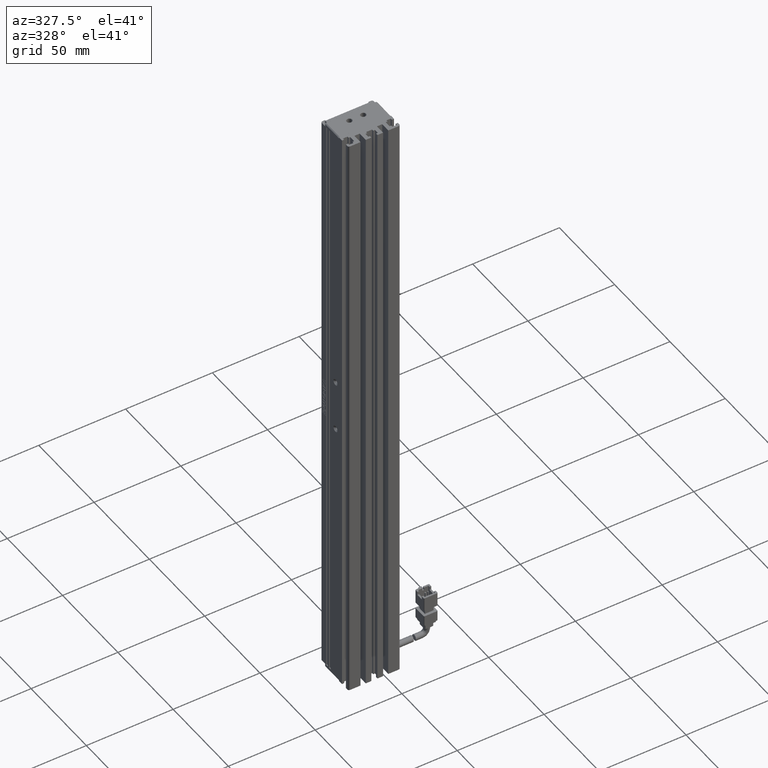
[diagram: clean part render]
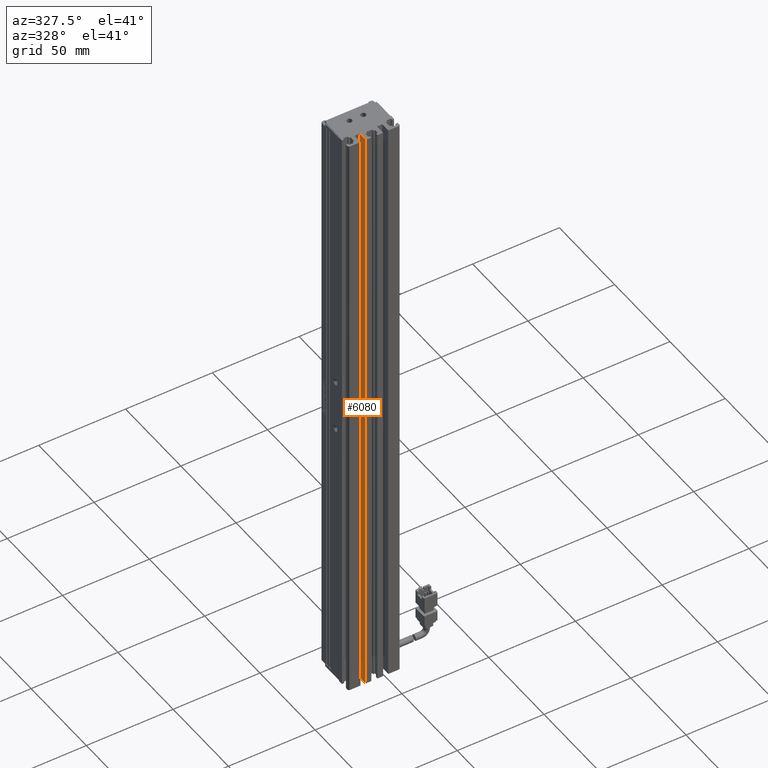
[diagram: same view with one face highlighted and labeled with its STEP entity id]
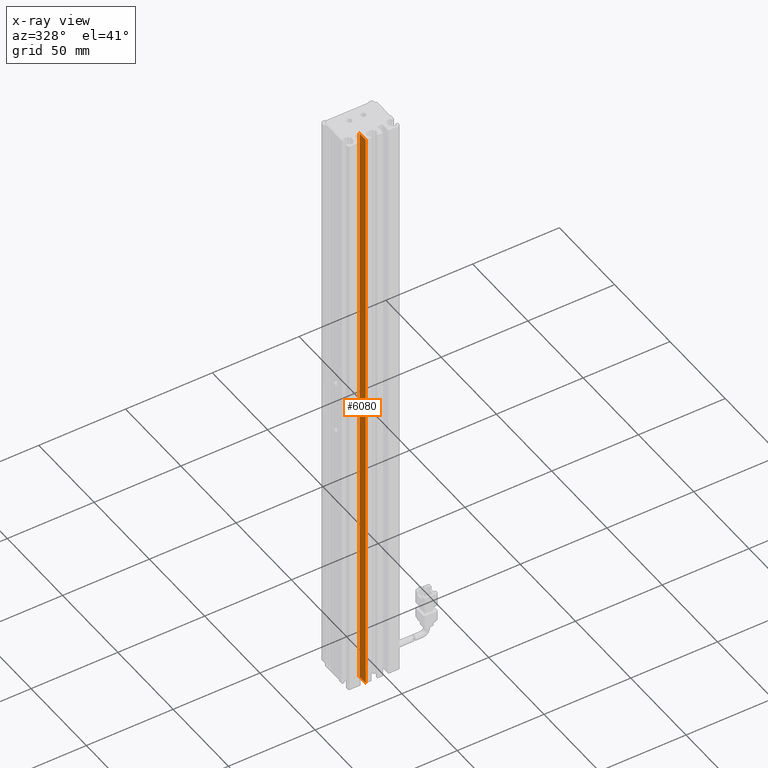
[diagram: x-ray of the same camera — body ghosted, the highlighted face saturated]
A machine part, auxiliary view. The second image highlights one B-rep face of the part: STEP entity #6080.
The next image is the same camera in x-ray: the body ghosted, the highlighted face saturated — about 0% of this face is hidden behind the body in this view.
In plain terms, the highlighted planar face has unit normal (-1, 0, 0).
Its self-contained STEP definition (entity closure, byte-faithful):
#1739 = VECTOR ( 'NONE', #32059, 1000.000000000000000 ) ;
#1831 = CARTESIAN_POINT ( 'NONE',  ( 35.92537974683543200, 10.69594479660386800, -290.0000000000000600 ) ) ;
#2064 = CARTESIAN_POINT ( 'NONE',  ( 35.92537974683543200, 7.083797468354437600, 60.00000000000001400 ) ) ;
#2405 = CARTESIAN_POINT ( 'NONE',  ( 35.92537974683543200, 16.19594479660386500, 60.00000000000001400 ) ) ;
#2932 = ORIENTED_EDGE ( 'NONE', *, *, #12432, .T. ) ;
#3138 = LINE ( 'NONE', #20444, #30876 ) ;
#3637 = EDGE_CURVE ( 'NONE', #8495, #66335, #30875, .T. ) ;
#5198 = VERTEX_POINT ( 'NONE', #1831 ) ;
#6080 = ADVANCED_FACE ( 'NONE', ( #67431 ), #48747, .T. ) ;
#6092 = CARTESIAN_POINT ( 'NONE',  ( 35.92537974683543200, 7.083797468354437600, 60.00000000000001400 ) ) ;
#7324 = DIRECTION ( 'NONE',  ( 0.0000000000000000000, 0.0000000000000000000, 1.000000000000000000 ) ) ;
#7394 = ORIENTED_EDGE ( 'NONE', *, *, #3637, .T. ) ;
#7728 = CARTESIAN_POINT ( 'NONE',  ( 35.92537974683543200, 7.083797468354437600, -290.0000000000000600 ) ) ;
#8305 = AXIS2_PLACEMENT_3D ( 'NONE', #2064, #38490, #7324 ) ;
#8495 = VERTEX_POINT ( 'NONE', #38584 ) ;
#10364 = CARTESIAN_POINT ( 'NONE',  ( 35.92537974683543200, 16.19594479660386500, -290.0000000000000600 ) ) ;
#12432 = EDGE_CURVE ( 'NONE', #66335, #5198, #51701, .T. ) ;
#15488 = CARTESIAN_POINT ( 'NONE',  ( 35.92537974683543200, 10.69594479660386800, 60.00000000000001400 ) ) ;
#20444 = CARTESIAN_POINT ( 'NONE',  ( 35.92537974683543200, 10.69594479660386800, 60.00000000000001400 ) ) ;
#26005 = EDGE_CURVE ( 'NONE', #32771, #5198, #3138, .T. ) ;
#29243 = VECTOR ( 'NONE', #38622, 1000.000000000000000 ) ;
#30875 = LINE ( 'NONE', #2405, #29243 ) ;
#30876 = VECTOR ( 'NONE', #56864, 1000.000000000000000 ) ;
#32059 = DIRECTION ( 'NONE',  ( -0.0000000000000000000, -1.000000000000000000, 0.0000000000000000000 ) ) ;
#32771 = VERTEX_POINT ( 'NONE', #15488 ) ;
#37847 = VECTOR ( 'NONE', #54372, 1000.000000000000000 ) ;
#38490 = DIRECTION ( 'NONE',  ( -1.000000000000000000, 0.0000000000000000000, 0.0000000000000000000 ) ) ;
#38584 = CARTESIAN_POINT ( 'NONE',  ( 35.92537974683543200, 16.19594479660386500, 60.00000000000001400 ) ) ;
#38622 = DIRECTION ( 'NONE',  ( -0.0000000000000000000, -0.0000000000000000000, -1.000000000000000000 ) ) ;
#39424 = EDGE_LOOP ( 'NONE', ( #53458, #7394, #2932, #61980 ) ) ;
#48747 = PLANE ( 'NONE',  #8305 ) ;
#51701 = LINE ( 'NONE', #7728, #37847 ) ;
#53458 = ORIENTED_EDGE ( 'NONE', *, *, #58102, .F. ) ;
#54372 = DIRECTION ( 'NONE',  ( -0.0000000000000000000, -1.000000000000000000, 0.0000000000000000000 ) ) ;
#56864 = DIRECTION ( 'NONE',  ( 0.0000000000000000000, -0.0000000000000000000, -1.000000000000000000 ) ) ;
#57147 = LINE ( 'NONE', #6092, #1739 ) ;
#58102 = EDGE_CURVE ( 'NONE', #8495, #32771, #57147, .T. ) ;
#61980 = ORIENTED_EDGE ( 'NONE', *, *, #26005, .F. ) ;
#66335 = VERTEX_POINT ( 'NONE', #10364 ) ;
#67431 = FACE_OUTER_BOUND ( 'NONE', #39424, .T. ) ;